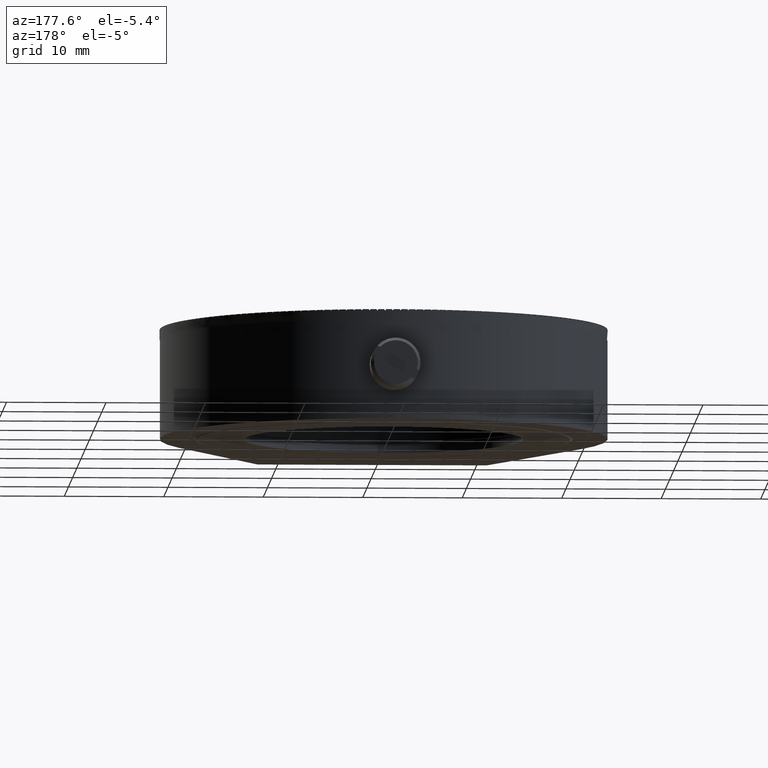
[diagram: clean part render]
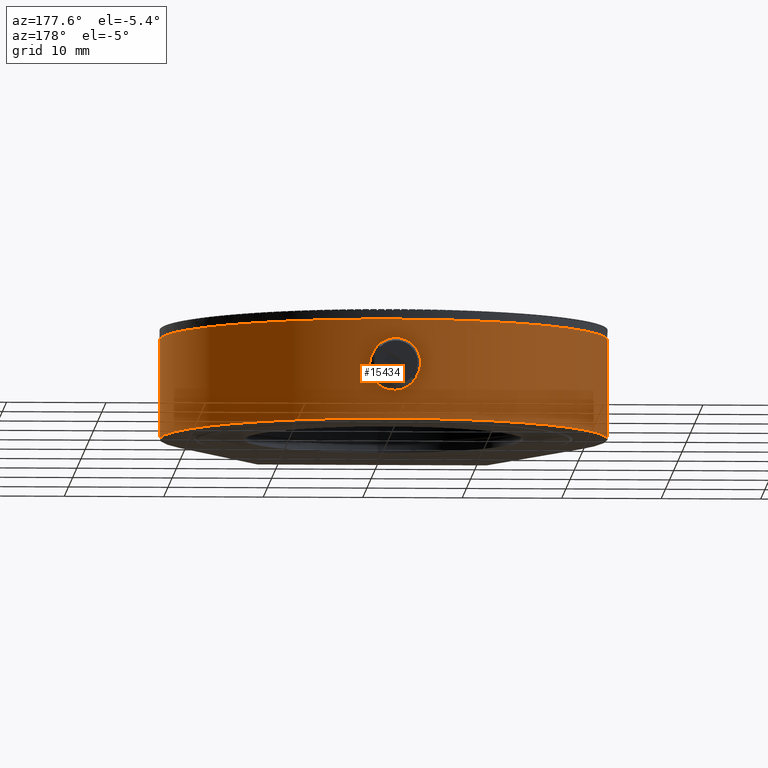
[diagram: same view with one face highlighted and labeled with its STEP entity id]
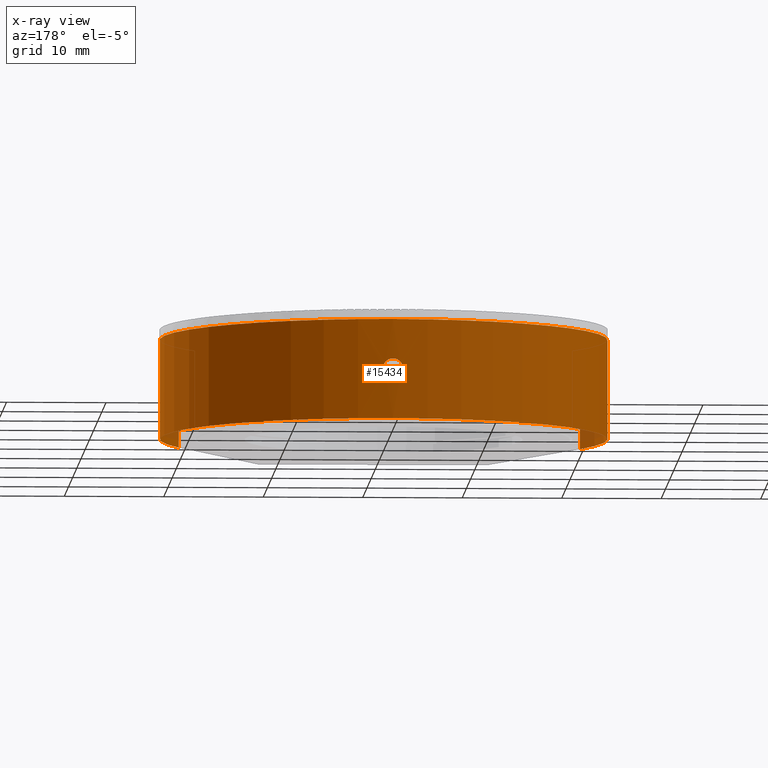
[diagram: x-ray of the same camera — body ghosted, the highlighted face saturated]
A machine part, auxiliary view. The second image highlights one B-rep face of the part: STEP entity #15434.
The next image is the same camera in x-ray: the body ghosted, the highlighted face saturated — about 1% of this face is hidden behind the body in this view.
In plain terms, the highlighted cylindrical surface (partial cylindrical patch) has radius 22.5 mm, axis along (-0, 0, -1).
Its self-contained STEP definition (entity closure, byte-faithful):
#626 = CARTESIAN_POINT ( 'NONE',  ( 0.2682127223962930684, 4.001640532728806043, -22.49874351525299687 ) ) ;
#635 = CARTESIAN_POINT ( 'NONE',  ( -20.16791126059156980, 4.336808689942017736E-16, 9.975237109207158781 ) ) ;
#776 = VECTOR ( 'NONE', #27292, 1000.000000000000000 ) ;
#2346 = VERTEX_POINT ( 'NONE', #14215 ) ;
#2401 = EDGE_CURVE ( 'NONE', #10225, #10225, #33954, .T. ) ;
#3522 = DIRECTION ( 'NONE',  ( 0.000000000000000000, 1.000000000000000000, 0.000000000000000000 ) ) ;
#4732 = CARTESIAN_POINT ( 'NONE',  ( -1.024999475239637414, 4.864621558994342898, -22.47664067594975990 ) ) ;
#5342 = CARTESIAN_POINT ( 'NONE',  ( 2.467508619305447404E-13, 6.024999999999997691, -22.49999999999999645 ) ) ;
#7608 = EDGE_CURVE ( 'NONE', #56401, #9331, #60910, .T. ) ;
#7898 = VECTOR ( 'NONE', #32905, 1000.000000000000000 ) ;
#8735 = CARTESIAN_POINT ( 'NONE',  ( 20.16791126059156980, 10.00000000000000000, 9.975237109207151676 ) ) ;
#8854 = CARTESIAN_POINT ( 'NONE',  ( 1.025001049491927496, 4.729255919994157509, -22.47664060415928944 ) ) ;
#9331 = VERTEX_POINT ( 'NONE', #635 ) ;
#9539 = LINE ( 'NONE', #33519, #7898 ) ;
#10225 = VERTEX_POINT ( 'NONE', #53448 ) ;
#10759 = ORIENTED_EDGE ( 'NONE', *, *, #46785, .F. ) ;
#11440 = DIRECTION ( 'NONE',  ( -0.000000000000000000, -1.000000000000000000, -0.000000000000000000 ) ) ;
#14215 = CARTESIAN_POINT ( 'NONE',  ( -20.16791126059156980, 10.00000000000000000, 9.975237109207158781 ) ) ;
#14824 = CARTESIAN_POINT ( 'NONE',  ( -0.8955678843450028959, 4.483649432105122123, -22.48222863491280776 ) ) ;
#15137 = CARTESIAN_POINT ( 'NONE',  ( 0.9135947617134980714, 4.463893729475784333, -22.48224025459106556 ) ) ;
#15434 = ADVANCED_FACE ( 'NONE', ( #43953, #54652 ), #34484, .T. ) ;
#17029 = AXIS2_PLACEMENT_3D ( 'NONE', #30074, #11440, #49313 ) ;
#18077 = CARTESIAN_POINT ( 'NONE',  ( 20.16791126059156980, -4.336808689942017736E-16, 9.975237109207151676 ) ) ;
#18613 = CARTESIAN_POINT ( 'NONE',  ( 0.5361089673567163150, 5.913593059470154678, -22.49440639698930511 ) ) ;
#19000 = EDGE_LOOP ( 'NONE', ( #10759, #32507, #61632, #48286 ) ) ;
#19043 = EDGE_LOOP ( 'NONE', ( #28700 ) ) ;
#19251 = CARTESIAN_POINT ( 'NONE',  ( 2.467508619305447404E-13, 6.024999999999997691, -22.49999999999999645 ) ) ;
#19548 = CARTESIAN_POINT ( 'NONE',  ( -0.9135940389805289330, 5.536107956117643170, -22.48224029343295172 ) ) ;
#19858 = CARTESIAN_POINT ( 'NONE',  ( -0.5361060502842145414, 4.086404985455472705, -22.49440647550266092 ) ) ;
#21609 = AXIS2_PLACEMENT_3D ( 'NONE', #47521, #42758, #38057 ) ;
#22235 = LINE ( 'NONE', #61002, #776 ) ;
#23657 = CARTESIAN_POINT ( 'NONE',  ( -0.2682084270530915582, 5.998360688009761077, -22.49874357007634273 ) ) ;
#23981 = CARTESIAN_POINT ( 'NONE',  ( 0.1353795092298311353, 3.975000699240536228, -22.49999996814571190 ) ) ;
#24586 = CARTESIAN_POINT ( 'NONE',  ( -0.8195039623830949749, 4.370001275734320068, -22.48526954144001522 ) ) ;
#27292 = DIRECTION ( 'NONE',  ( -0.000000000000000000, -1.000000000000000000, -0.000000000000000000 ) ) ;
#28409 = CARTESIAN_POINT ( 'NONE',  ( -0.5163480002442362160, 5.895569409007133110, -22.49441670137364468 ) ) ;
#28700 = ORIENTED_EDGE ( 'NONE', *, *, #2401, .T. ) ;
#28711 = CARTESIAN_POINT ( 'NONE',  ( -0.6299965325983970521, 5.819505687034776109, -22.49137723748468076 ) ) ;
#30074 = CARTESIAN_POINT ( 'NONE',  ( 0.000000000000000000, 10.00000000000000000, 0.000000000000000000 ) ) ;
#32507 = ORIENTED_EDGE ( 'NONE', *, *, #38195, .T. ) ;
#32905 = DIRECTION ( 'NONE',  ( 0.000000000000000000, 1.000000000000000000, 0.000000000000000000 ) ) ;
#33519 = CARTESIAN_POINT ( 'NONE',  ( -20.16791126059156980, 10.00000000000000000, 9.975237109207160557 ) ) ;
#33568 = AXIS2_PLACEMENT_3D ( 'NONE', #47683, #3522, #56518 ) ;
#33954 = B_SPLINE_CURVE_WITH_KNOTS ( 'NONE', 3,
 ( #5342, #43517, #23657, #28409, #28711, #19548, #42585, #4732, #38788, #14824, #24586, #19858, #43819, #23981, #626, #39105, #58328, #15137, #8854, #43214, #47353, #61816, #37871, #18613, #57090, #19251 ),
 .UNSPECIFIED., .T., .F.,
 ( 4, 2, 2, 2, 2, 2, 2, 2, 2, 2, 2, 2, 4 ),
 ( -0.001601417298820691226, -0.001201061994920516861, -0.0008007066910203422799, 3.916780005148653987E-09, 0.0004003592206801801640, 0.0008007145245803553961, 0.001601425132380704559, 0.002001780436280879358, 0.002402135740181054156, 0.003202846347981402886, 0.003603201651881578552, 0.004003556955781753350, 0.004804267563582102080 ),
 .UNSPECIFIED. ) ;
#34484 = CYLINDRICAL_SURFACE ( 'NONE', #17029, 22.49999999999999645 ) ;
#37871 = CARTESIAN_POINT ( 'NONE',  ( 0.8195052746568147750, 5.629996929046273912, -22.48526949136385156 ) ) ;
#38057 = DIRECTION ( 'NONE',  ( 0.000000000000000000, 0.000000000000000000, -1.000000000000000000 ) ) ;
#38195 = EDGE_CURVE ( 'NONE', #49966, #56401, #22235, .T. ) ;
#38788 = CARTESIAN_POINT ( 'NONE',  ( -0.9983597244221480427, 4.731788133955107334, -22.47789856923050422 ) ) ;
#39105 = CARTESIAN_POINT ( 'NONE',  ( 0.5163509831197560240, 4.104432385256971294, -22.49441662928436969 ) ) ;
#42585 = CARTESIAN_POINT ( 'NONE',  ( -1.025001049497623606, 5.270744962374898535, -22.47664060415902298 ) ) ;
#42758 = DIRECTION ( 'NONE',  ( 0.000000000000000000, 1.000000000000000000, 0.000000000000000000 ) ) ;
#43214 = CARTESIAN_POINT ( 'NONE',  ( 1.024999475242490687, 5.135377999808186544, -22.47664067594961779 ) ) ;
#43517 = CARTESIAN_POINT ( 'NONE',  ( -0.1353747753966778045, 6.025000000000029665, -22.50000000000000000 ) ) ;
#43819 = CARTESIAN_POINT ( 'NONE',  ( -0.2707431356519791610, 3.974998601559932343, -22.50000006370670746 ) ) ;
#43953 = FACE_OUTER_BOUND ( 'NONE', #19000, .T. ) ;
#46785 = EDGE_CURVE ( 'NONE', #49966, #2346, #49673, .T. ) ;
#47353 = CARTESIAN_POINT ( 'NONE',  ( 0.9983599080044770480, 5.268210973383119722, -22.47789856034628286 ) ) ;
#47521 = CARTESIAN_POINT ( 'NONE',  ( 0.000000000000000000, 0.000000000000000000, 0.000000000000000000 ) ) ;
#47683 = CARTESIAN_POINT ( 'NONE',  ( 0.000000000000000000, 10.00000000000000000, 0.000000000000000000 ) ) ;
#48286 = ORIENTED_EDGE ( 'NONE', *, *, #58013, .T. ) ;
#49313 = DIRECTION ( 'NONE',  ( 0.000000000000000000, 0.000000000000000000, -1.000000000000000000 ) ) ;
#49673 = CIRCLE ( 'NONE', #33568, 22.49999999999999645 ) ;
#49966 = VERTEX_POINT ( 'NONE', #8735 ) ;
#53448 = CARTESIAN_POINT ( 'NONE',  ( -1.024999999999994138, 5.000000000000000000, -22.47664065201914951 ) ) ;
#54652 = FACE_BOUND ( 'NONE', #19043, .T. ) ;
#56401 = VERTEX_POINT ( 'NONE', #18077 ) ;
#56518 = DIRECTION ( 'NONE',  ( 0.000000000000000000, 0.000000000000000000, -1.000000000000000000 ) ) ;
#57090 = CARTESIAN_POINT ( 'NONE',  ( 0.2707495507940956836, 6.024999999999930189, -22.49999999999998579 ) ) ;
#58013 = EDGE_CURVE ( 'NONE', #9331, #2346, #9539, .T. ) ;
#58328 = CARTESIAN_POINT ( 'NONE',  ( 0.6299989439748588937, 4.180496240965306143, -22.49137716757327965 ) ) ;
#60910 = CIRCLE ( 'NONE', #21609, 22.49999999999999645 ) ;
#61002 = CARTESIAN_POINT ( 'NONE',  ( 20.16791126059156980, 10.00000000000000000, 9.975237109207155228 ) ) ;
#61632 = ORIENTED_EDGE ( 'NONE', *, *, #7608, .T. ) ;
#61816 = CARTESIAN_POINT ( 'NONE',  ( 0.8955687057718699773, 5.516349034467896040, -22.48222860146142565 ) ) ;